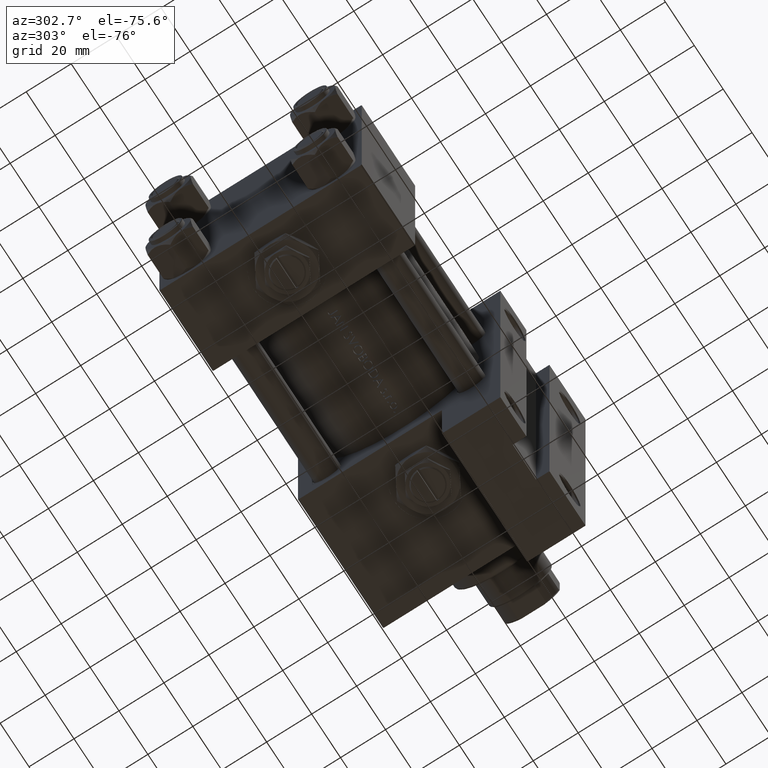
[diagram: clean part render]
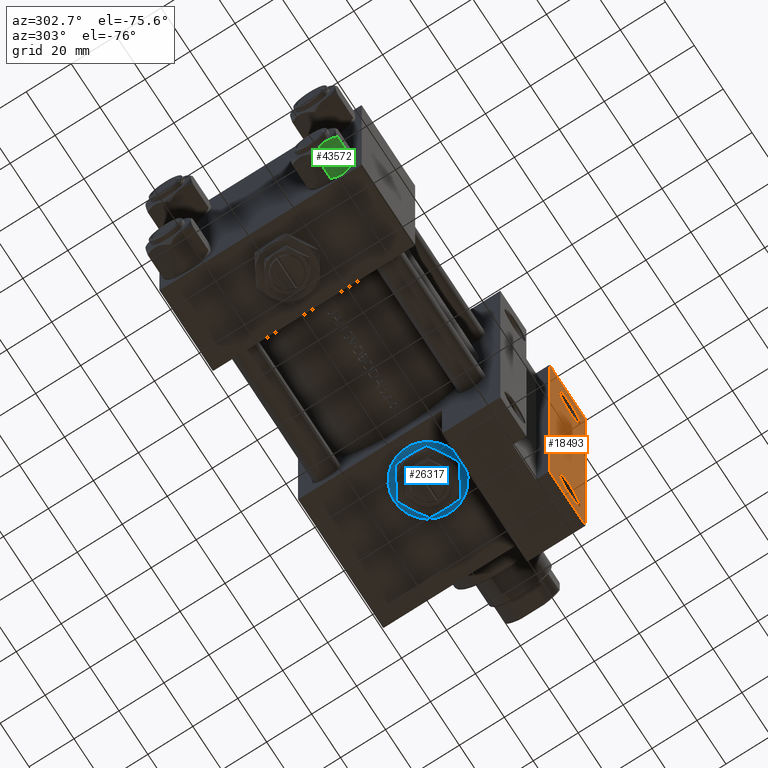
[diagram: same view with three faces highlighted in distinct colors, each labeled with its STEP entity id]
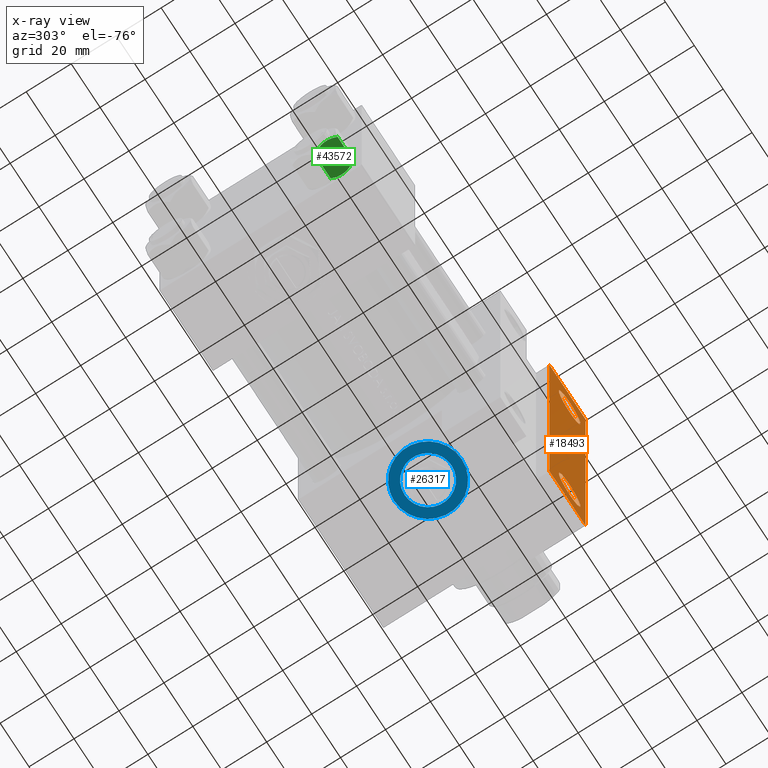
[diagram: x-ray of the same camera — body ghosted, the three highlighted faces saturated]
A machine part, auxiliary view with three faces highlighted in distinct colors.
The next image is the same camera in x-ray (body ghosted, the three faces saturated) — at least one of them is partly hidden behind the body in this view.
Their STEP definitions:

[orange] entity #18493 — the highlighted planar face has unit normal (0, -1, 0).
#2407 = EDGE_CURVE ( 'NONE', #6319, #7832, #30395, .T. ) ;
#3170 = EDGE_CURVE ( 'NONE', #6319, #3872, #16389, .T. ) ;
#3357 = VERTEX_POINT ( 'NONE', #26397 ) ;
#3624 = EDGE_CURVE ( 'NONE', #3357, #20122, #6098, .T. ) ;
#3872 = VERTEX_POINT ( 'NONE', #34657 ) ;
#3974 = DIRECTION ( 'NONE',  ( -0.000000000000000000, -0.000000000000000000, 1.000000000000000000 ) ) ;
#4506 = ORIENTED_EDGE ( 'NONE', *, *, #3624, .T. ) ;
#6098 = CIRCLE ( 'NONE', #27009, 7.499499999999992284 ) ;
#6319 = VERTEX_POINT ( 'NONE', #33161 ) ;
#6521 = EDGE_CURVE ( 'NONE', #40066, #45542, #18265, .T. ) ;
#6605 = EDGE_LOOP ( 'NONE', ( #4506, #30067 ) ) ;
#6651 = EDGE_LOOP ( 'NONE', ( #27414, #21579 ) ) ;
#6842 = VECTOR ( 'NONE', #42528, 1000.000000000000000 ) ;
#7626 = CARTESIAN_POINT ( 'NONE',  ( 143.9999999999999716, 62.00000000000000000, -45.00000000000000000 ) ) ;
#7832 = VERTEX_POINT ( 'NONE', #14659 ) ;
#8975 = CARTESIAN_POINT ( 'NONE',  ( 136.5004999999999598, 62.00000000000000000, -45.00000000000000000 ) ) ;
#9273 = CARTESIAN_POINT ( 'NONE',  ( 154.9999999999999716, -80.00000000000002842, -45.00000000000000000 ) ) ;
#9279 = DIRECTION ( 'NONE',  ( -0.000000000000000000, -0.000000000000000000, 1.000000000000000000 ) ) ;
#9743 = EDGE_CURVE ( 'NONE', #7832, #46492, #31192, .T. ) ;
#10626 = PLANE ( 'NONE',  #48434 ) ;
#11106 = EDGE_LOOP ( 'NONE', ( #16385, #32975, #12880, #19645 ) ) ;
#12880 = ORIENTED_EDGE ( 'NONE', *, *, #9743, .T. ) ;
#14287 = CARTESIAN_POINT ( 'NONE',  ( 151.4994999999999550, -62.00000000000000000, -45.00000000000000000 ) ) ;
#14389 = CARTESIAN_POINT ( 'NONE',  ( 155.0000000000000000, 45.00000000000001421, -45.00000000000000000 ) ) ;
#14471 = VECTOR ( 'NONE', #27406, 1000.000000000000000 ) ;
#14659 = CARTESIAN_POINT ( 'NONE',  ( 155.0000000000000000, 80.00000000000000000, -45.00000000000000000 ) ) ;
#16385 = ORIENTED_EDGE ( 'NONE', *, *, #3170, .F. ) ;
#16389 = LINE ( 'NONE', #27716, #40637 ) ;
#18265 = CIRCLE ( 'NONE', #38361, 7.499499999999992284 ) ;
#18493 = ADVANCED_FACE ( 'NONE', ( #21948, #22445, #48846 ), #10626, .T. ) ;
#18680 = DIRECTION ( 'NONE',  ( -1.000000000000000000, 0.000000000000000000, 0.000000000000000000 ) ) ;
#19205 = CIRCLE ( 'NONE', #47297, 7.499499999999992284 ) ;
#19245 = AXIS2_PLACEMENT_3D ( 'NONE', #32562, #36081, #32320 ) ;
#19310 = DIRECTION ( 'NONE',  ( -1.000000000000000000, 0.000000000000000000, 0.000000000000000000 ) ) ;
#19645 = ORIENTED_EDGE ( 'NONE', *, *, #44330, .T. ) ;
#20122 = VERTEX_POINT ( 'NONE', #14287 ) ;
#21328 = CARTESIAN_POINT ( 'NONE',  ( 143.9999999999999716, -62.00000000000000000, -45.00000000000000000 ) ) ;
#21579 = ORIENTED_EDGE ( 'NONE', *, *, #27617, .T. ) ;
#21733 = EDGE_CURVE ( 'NONE', #20122, #3357, #48914, .T. ) ;
#21948 = FACE_OUTER_BOUND ( 'NONE', #11106, .T. ) ;
#22445 = FACE_BOUND ( 'NONE', #6605, .T. ) ;
#22840 = CARTESIAN_POINT ( 'NONE',  ( 143.9999999999999716, 62.00000000000000000, -45.00000000000000000 ) ) ;
#22851 = CARTESIAN_POINT ( 'NONE',  ( 96.00000000000000000, 79.99999999999998579, -45.00000000000000000 ) ) ;
#23386 = CARTESIAN_POINT ( 'NONE',  ( 155.0000000000000000, 45.00000000000001421, -45.00000000000000000 ) ) ;
#26397 = CARTESIAN_POINT ( 'NONE',  ( 136.5004999999999598, -62.00000000000000000, -45.00000000000000000 ) ) ;
#27009 = AXIS2_PLACEMENT_3D ( 'NONE', #21328, #9279, #40699 ) ;
#27406 = DIRECTION ( 'NONE',  ( 0.000000000000000000, -1.000000000000000000, 0.000000000000000000 ) ) ;
#27414 = ORIENTED_EDGE ( 'NONE', *, *, #6521, .T. ) ;
#27617 = EDGE_CURVE ( 'NONE', #45542, #40066, #19205, .T. ) ;
#27689 = CARTESIAN_POINT ( 'NONE',  ( 95.99999999999998579, -79.99999999999998579, -45.00000000000000000 ) ) ;
#27716 = CARTESIAN_POINT ( 'NONE',  ( 129.9999999999999716, -79.99999999999997158, -45.00000000000000000 ) ) ;
#29754 = DIRECTION ( 'NONE',  ( 0.000000000000000000, 0.000000000000000000, -1.000000000000000000 ) ) ;
#30067 = ORIENTED_EDGE ( 'NONE', *, *, #21733, .T. ) ;
#30395 = LINE ( 'NONE', #22851, #34194 ) ;
#31192 = LINE ( 'NONE', #23386, #14471 ) ;
#32320 = DIRECTION ( 'NONE',  ( -1.000000000000000000, 0.000000000000000000, 0.000000000000000000 ) ) ;
#32562 = CARTESIAN_POINT ( 'NONE',  ( 143.9999999999999716, -62.00000000000000000, -45.00000000000000000 ) ) ;
#32975 = ORIENTED_EDGE ( 'NONE', *, *, #2407, .T. ) ;
#33161 = CARTESIAN_POINT ( 'NONE',  ( 129.9999999999999716, 79.99999999999998579, -45.00000000000000000 ) ) ;
#34194 = VECTOR ( 'NONE', #42204, 1000.000000000000000 ) ;
#34657 = CARTESIAN_POINT ( 'NONE',  ( 129.9999999999999716, -79.99999999999997158, -45.00000000000000000 ) ) ;
#36081 = DIRECTION ( 'NONE',  ( -0.000000000000000000, -0.000000000000000000, 1.000000000000000000 ) ) ;
#38361 = AXIS2_PLACEMENT_3D ( 'NONE', #22840, #3974, #19310 ) ;
#39501 = LINE ( 'NONE', #27689, #6842 ) ;
#40066 = VERTEX_POINT ( 'NONE', #8975 ) ;
#40637 = VECTOR ( 'NONE', #43051, 1000.000000000000000 ) ;
#40699 = DIRECTION ( 'NONE',  ( -1.000000000000000000, 0.000000000000000000, 0.000000000000000000 ) ) ;
#42204 = DIRECTION ( 'NONE',  ( 1.000000000000000000, 2.352167425053297897E-16, 0.000000000000000000 ) ) ;
#42528 = DIRECTION ( 'NONE',  ( -1.000000000000000000, 7.056502275159895171E-16, -0.000000000000000000 ) ) ;
#42730 = CARTESIAN_POINT ( 'NONE',  ( 151.4994999999999550, 62.00000000000000000, -45.00000000000000000 ) ) ;
#43051 = DIRECTION ( 'NONE',  ( -0.000000000000000000, -1.000000000000000000, -0.000000000000000000 ) ) ;
#44330 = EDGE_CURVE ( 'NONE', #46492, #3872, #39501, .T. ) ;
#45081 = DIRECTION ( 'NONE',  ( -1.000000000000000000, 0.000000000000000000, -0.000000000000000000 ) ) ;
#45337 = DIRECTION ( 'NONE',  ( -0.000000000000000000, -0.000000000000000000, 1.000000000000000000 ) ) ;
#45542 = VERTEX_POINT ( 'NONE', #42730 ) ;
#46492 = VERTEX_POINT ( 'NONE', #9273 ) ;
#47297 = AXIS2_PLACEMENT_3D ( 'NONE', #7626, #45337, #18680 ) ;
#48434 = AXIS2_PLACEMENT_3D ( 'NONE', #14389, #29754, #45081 ) ;
#48846 = FACE_BOUND ( 'NONE', #6651, .T. ) ;
#48914 = CIRCLE ( 'NONE', #19245, 7.499499999999992284 ) ;

[blue] entity #26317 — the highlighted planar face has unit normal (0, 0, -1).
#128 = FACE_BOUND ( 'NONE', #47768, .T. ) ;
#3024 = AXIS2_PLACEMENT_3D ( 'NONE', #21266, #28817, #40392 ) ;
#6412 = AXIS2_PLACEMENT_3D ( 'NONE', #33577, #49652, #15194 ) ;
#6679 = EDGE_CURVE ( 'NONE', #27433, #22064, #31156, .T. ) ;
#7458 = ORIENTED_EDGE ( 'NONE', *, *, #23401, .T. ) ;
#8684 = CARTESIAN_POINT ( 'NONE',  ( 116.0000000000000000, 44.80000000000001137, 15.00000000000001243 ) ) ;
#13329 = CIRCLE ( 'NONE', #41443, 15.00000000000001243 ) ;
#13742 = DIRECTION ( 'NONE',  ( 0.000000000000000000, 1.000000000000000000, 0.000000000000000000 ) ) ;
#13900 = CIRCLE ( 'NONE', #39622, 10.48000000000000043 ) ;
#15194 = DIRECTION ( 'NONE',  ( 0.000000000000000000, -0.000000000000000000, 1.000000000000000000 ) ) ;
#18532 = VERTEX_POINT ( 'NONE', #19176 ) ;
#18979 = PLANE ( 'NONE',  #6412 ) ;
#19176 = CARTESIAN_POINT ( 'NONE',  ( 116.0000000000000000, 44.80000000000001137, -15.00000000000001243 ) ) ;
#20451 = DIRECTION ( 'NONE',  ( 0.000000000000000000, 0.000000000000000000, 1.000000000000000000 ) ) ;
#20736 = DIRECTION ( 'NONE',  ( 0.000000000000000000, 0.000000000000000000, 1.000000000000000000 ) ) ;
#21266 = CARTESIAN_POINT ( 'NONE',  ( 116.0000000000000000, 44.80000000000001847, 0.000000000000000000 ) ) ;
#22064 = VERTEX_POINT ( 'NONE', #39311 ) ;
#23401 = EDGE_CURVE ( 'NONE', #34789, #18532, #48913, .T. ) ;
#23794 = DIRECTION ( 'NONE',  ( 0.000000000000000000, 1.000000000000000000, 0.000000000000000000 ) ) ;
#24729 = CARTESIAN_POINT ( 'NONE',  ( 116.0000000000000000, 44.80000000000001847, 10.48000000000000043 ) ) ;
#26317 = ADVANCED_FACE ( 'NONE', ( #128, #38607 ), #18979, .T. ) ;
#27433 = VERTEX_POINT ( 'NONE', #24729 ) ;
#28737 = CARTESIAN_POINT ( 'NONE',  ( 116.0000000000000000, 44.80000000000001137, 0.000000000000000000 ) ) ;
#28817 = DIRECTION ( 'NONE',  ( 0.000000000000000000, 1.000000000000000000, 0.000000000000000000 ) ) ;
#31156 = CIRCLE ( 'NONE', #3024, 10.48000000000000043 ) ;
#33577 = CARTESIAN_POINT ( 'NONE',  ( 116.0000000000000000, 44.80000000000001137, 0.000000000000000000 ) ) ;
#33676 = AXIS2_PLACEMENT_3D ( 'NONE', #28737, #39575, #20451 ) ;
#34789 = VERTEX_POINT ( 'NONE', #8684 ) ;
#35524 = ORIENTED_EDGE ( 'NONE', *, *, #6679, .F. ) ;
#36555 = EDGE_CURVE ( 'NONE', #22064, #27433, #13900, .T. ) ;
#37886 = EDGE_LOOP ( 'NONE', ( #7458, #44335 ) ) ;
#38607 = FACE_OUTER_BOUND ( 'NONE', #37886, .T. ) ;
#39311 = CARTESIAN_POINT ( 'NONE',  ( 116.0000000000000000, 44.80000000000001847, -10.48000000000000043 ) ) ;
#39575 = DIRECTION ( 'NONE',  ( 0.000000000000000000, 1.000000000000000000, 0.000000000000000000 ) ) ;
#39622 = AXIS2_PLACEMENT_3D ( 'NONE', #48199, #13742, #40669 ) ;
#40392 = DIRECTION ( 'NONE',  ( 0.000000000000000000, 0.000000000000000000, 1.000000000000000000 ) ) ;
#40669 = DIRECTION ( 'NONE',  ( 0.000000000000000000, 0.000000000000000000, 1.000000000000000000 ) ) ;
#41443 = AXIS2_PLACEMENT_3D ( 'NONE', #47407, #23794, #20736 ) ;
#42811 = ORIENTED_EDGE ( 'NONE', *, *, #36555, .F. ) ;
#44335 = ORIENTED_EDGE ( 'NONE', *, *, #47459, .T. ) ;
#47407 = CARTESIAN_POINT ( 'NONE',  ( 116.0000000000000000, 44.80000000000001137, 0.000000000000000000 ) ) ;
#47459 = EDGE_CURVE ( 'NONE', #18532, #34789, #13329, .T. ) ;
#47768 = EDGE_LOOP ( 'NONE', ( #35524, #42811 ) ) ;
#48199 = CARTESIAN_POINT ( 'NONE',  ( 116.0000000000000000, 44.80000000000001847, 0.000000000000000000 ) ) ;
#48913 = CIRCLE ( 'NONE', #33676, 15.00000000000001243 ) ;
#49652 = DIRECTION ( 'NONE',  ( 0.000000000000000000, 1.000000000000000000, 0.000000000000000000 ) ) ;

[green] entity #43572 — the highlighted planar face has unit normal (-0, 0.5, 0.866).
#392 = AXIS2_PLACEMENT_3D ( 'NONE', #30418, #11289, #26630 ) ;
#1674 = CARTESIAN_POINT ( 'NONE',  ( 5.810000000000000497, 10.06321519197518022, -14.00000000000000000 ) ) ;
#1797 = EDGE_CURVE ( 'NONE', #15520, #42651, #17852, .T. ) ;
#2104 = ORIENTED_EDGE ( 'NONE', *, *, #29706, .F. ) ;
#2161 = DIRECTION ( 'NONE',  ( -0.000000000000000000, -0.000000000000000000, 1.000000000000000000 ) ) ;
#3368 = CARTESIAN_POINT ( 'NONE',  ( 11.62000000000000099, -1.689012838886770227E-15, -12.44321519197518633 ) ) ;
#3870 = CARTESIAN_POINT ( 'NONE',  ( 11.16498164529022574, 0.7881149087337292469, -12.89823354668504862 ) ) ;
#5177 = ORIENTED_EDGE ( 'NONE', *, *, #1797, .F. ) ;
#5853 = VERTEX_POINT ( 'NONE', #35755 ) ;
#6542 = CARTESIAN_POINT ( 'NONE',  ( 5.810000000000000497, 10.06321519197518022, -1.556784808024815892 ) ) ;
#7265 = B_SPLINE_CURVE_WITH_KNOTS ( 'NONE', 3,
 ( #49048, #44776, #11320, #48552, #14088, #37737, #45284, #38247 ),
 .UNSPECIFIED., .F., .F.,
 ( 4, 2, 2, 4 ),
 ( 2.544312114903581015E-07, 0.003011550106433540791, 0.004517197944044564449, 0.006022845781655588107 ),
 .UNSPECIFIED. ) ;
#8146 = CARTESIAN_POINT ( 'NONE',  ( 10.69662495661650503, 1.599332489581333672, -13.28854452935655139 ) ) ;
#8967 = VECTOR ( 'NONE', #2161, 1000.000000000000000 ) ;
#9726 = ORIENTED_EDGE ( 'NONE', *, *, #15315, .F. ) ;
#9807 = CARTESIAN_POINT ( 'NONE',  ( 11.62000000000000099, -1.924525737834042474E-15, -1.556784808024813893 ) ) ;
#10298 = CARTESIAN_POINT ( 'NONE',  ( 8.715000000000005187, 5.031607595987590109, 0.000000000000000000 ) ) ;
#11289 = DIRECTION ( 'NONE',  ( -0.8660254037844387076, -0.4999999999999998335, 0.000000000000000000 ) ) ;
#11320 = CARTESIAN_POINT ( 'NONE',  ( 10.69859855102501278, 1.595914123792262718, -0.7141438259524649501 ) ) ;
#11662 = EDGE_CURVE ( 'NONE', #5853, #29085, #16476, .T. ) ;
#13273 = ORIENTED_EDGE ( 'NONE', *, *, #11662, .F. ) ;
#13440 = CARTESIAN_POINT ( 'NONE',  ( 11.62000000000000099, -1.813166800014576593E-15, -14.00000000000000000 ) ) ;
#13819 = CARTESIAN_POINT ( 'NONE',  ( 6.733375043383499126, 8.463882702393844326, -0.7114554706434494946 ) ) ;
#14088 = CARTESIAN_POINT ( 'NONE',  ( 9.729165168613654657, 3.275021996682081493, -0.1903979688073405840 ) ) ;
#15214 = CARTESIAN_POINT ( 'NONE',  ( 7.455303369716807182, 7.213466161761384221, -13.69973261901325934 ) ) ;
#15315 = EDGE_CURVE ( 'NONE', #45423, #5853, #7265, .T. ) ;
#15520 = VERTEX_POINT ( 'NONE', #43002 ) ;
#16476 = B_SPLINE_CURVE_WITH_KNOTS ( 'NONE', 3,
 ( #10298, #21368, #32955, #13819, #25641, #6542 ),
 .UNSPECIFIED., .F., .F.,
 ( 4, 2, 4 ),
 ( 0.006022845781655588107, 0.009013049135303636758, 0.01200325248895168367 ),
 .UNSPECIFIED. ) ;
#16762 = LINE ( 'NONE', #1674, #8967 ) ;
#17852 = B_SPLINE_CURVE_WITH_KNOTS ( 'NONE', 3,
 ( #41875, #37609, #45643, #15214, #22514, #30077, #22776, #30576 ),
 .UNSPECIFIED., .F., .F.,
 ( 4, 2, 2, 4 ),
 ( 2.544312114902182352E-07, 0.003011550106433542526, 0.004517197944044567919, 0.006022845781655592444 ),
 .UNSPECIFIED. ) ;
#18398 = VERTEX_POINT ( 'NONE', #21443 ) ;
#18702 = CARTESIAN_POINT ( 'NONE',  ( 9.716999946243698005, 3.296092779912226156, -13.84547602999602134 ) ) ;
#20249 = ORIENTED_EDGE ( 'NONE', *, *, #20920, .F. ) ;
#20920 = EDGE_CURVE ( 'NONE', #42651, #18398, #35709, .T. ) ;
#21368 = CARTESIAN_POINT ( 'NONE',  ( 8.209704053696576409, 5.906805847843727086, 3.430483436379916373E-15 ) ) ;
#21443 = CARTESIAN_POINT ( 'NONE',  ( 11.62000000000000099, -1.689012838886770227E-15, -12.44321519197518633 ) ) ;
#21958 = ORIENTED_EDGE ( 'NONE', *, *, #33738, .T. ) ;
#22514 = CARTESIAN_POINT ( 'NONE',  ( 7.700834831386345058, 6.788193195293094284, -13.80960203119265906 ) ) ;
#22776 = CARTESIAN_POINT ( 'NONE',  ( 8.460569896449618099, 5.472293462311861312, -14.00000000000000000 ) ) ;
#25641 = CARTESIAN_POINT ( 'NONE',  ( 6.265018354709773973, 9.275100283241448196, -1.101766453314953154 ) ) ;
#25747 = LINE ( 'NONE', #13440, #49019 ) ;
#26630 = DIRECTION ( 'NONE',  ( 0.4999999999999998335, -0.8660254037844387076, 0.000000000000000000 ) ) ;
#28778 = DIRECTION ( 'NONE',  ( -0.000000000000000000, -0.000000000000000000, 1.000000000000000000 ) ) ;
#29085 = VERTEX_POINT ( 'NONE', #34432 ) ;
#29706 = EDGE_CURVE ( 'NONE', #18398, #45423, #25747, .T. ) ;
#30077 = CARTESIAN_POINT ( 'NONE',  ( 8.202333004087901003, 5.919572880271053883, -13.96005881939309567 ) ) ;
#30418 = CARTESIAN_POINT ( 'NONE',  ( 5.810000000000000497, 10.06321519197518022, -14.00000000000000000 ) ) ;
#30576 = CARTESIAN_POINT ( 'NONE',  ( 8.715000000000005187, 5.031607595987590109, -14.00000000000000000 ) ) ;
#32955 = CARTESIAN_POINT ( 'NONE',  ( 7.713000053756307928, 6.767122412062951398, -0.1545239700039825748 ) ) ;
#33738 = EDGE_CURVE ( 'NONE', #15520, #29085, #16762, .T. ) ;
#33945 = PLANE ( 'NONE',  #392 ) ;
#34050 = CARTESIAN_POINT ( 'NONE',  ( 9.220295946303432189, 4.156409344131451356, -14.00000000000000178 ) ) ;
#34432 = CARTESIAN_POINT ( 'NONE',  ( 5.810000000000000497, 10.06321519197518022, -1.556784808024815892 ) ) ;
#35709 = B_SPLINE_CURVE_WITH_KNOTS ( 'NONE', 3,
 ( #38322, #34050, #18702, #8146, #3870, #3368 ),
 .UNSPECIFIED., .F., .F.,
 ( 4, 2, 4 ),
 ( 0.006022845781655592444, 0.009013049135303636758, 0.01200325248895168194 ),
 .UNSPECIFIED. ) ;
#35755 = CARTESIAN_POINT ( 'NONE',  ( 8.715000000000005187, 5.031607595987590109, 0.000000000000000000 ) ) ;
#37609 = CARTESIAN_POINT ( 'NONE',  ( 6.265545725125286403, 9.274186850887383926, -12.89876091710046957 ) ) ;
#37737 = CARTESIAN_POINT ( 'NONE',  ( 9.227666995912102266, 4.143642311704121894, -0.03994118060690670519 ) ) ;
#38247 = CARTESIAN_POINT ( 'NONE',  ( 8.715000000000005187, 5.031607595987590109, 0.000000000000000000 ) ) ;
#38322 = CARTESIAN_POINT ( 'NONE',  ( 8.715000000000005187, 5.031607595987590109, -14.00000000000000000 ) ) ;
#41234 = FACE_OUTER_BOUND ( 'NONE', #47951, .T. ) ;
#41875 = CARTESIAN_POINT ( 'NONE',  ( 5.810000000000000497, 10.06321519197518022, -12.44321519197518455 ) ) ;
#41966 = CARTESIAN_POINT ( 'NONE',  ( 8.715000000000005187, 5.031607595987590109, -14.00000000000000000 ) ) ;
#42651 = VERTEX_POINT ( 'NONE', #41966 ) ;
#43002 = CARTESIAN_POINT ( 'NONE',  ( 5.810000000000000497, 10.06321519197518022, -12.44321519197518455 ) ) ;
#43572 = ADVANCED_FACE ( 'NONE', ( #41234 ), #33945, .F. ) ;
#44776 = CARTESIAN_POINT ( 'NONE',  ( 11.16445427487472131, 0.7890283410877956261, -1.101239082899531985 ) ) ;
#45284 = CARTESIAN_POINT ( 'NONE',  ( 8.969430103550381617, 4.590921729663312689, 3.523657060577888622E-15 ) ) ;
#45423 = VERTEX_POINT ( 'NONE', #9807 ) ;
#45643 = CARTESIAN_POINT ( 'NONE',  ( 6.731401448974991375, 8.467301068182917945, -13.28585617404753627 ) ) ;
#47951 = EDGE_LOOP ( 'NONE', ( #5177, #21958, #13273, #9726, #2104, #20249 ) ) ;
#48552 = CARTESIAN_POINT ( 'NONE',  ( 9.974696630283190757, 2.849749030213792000, -0.3002673809867367205 ) ) ;
#49019 = VECTOR ( 'NONE', #28778, 1000.000000000000000 ) ;
#49048 = CARTESIAN_POINT ( 'NONE',  ( 11.62000000000000099, -1.924525737834042474E-15, -1.556784808024813893 ) ) ;